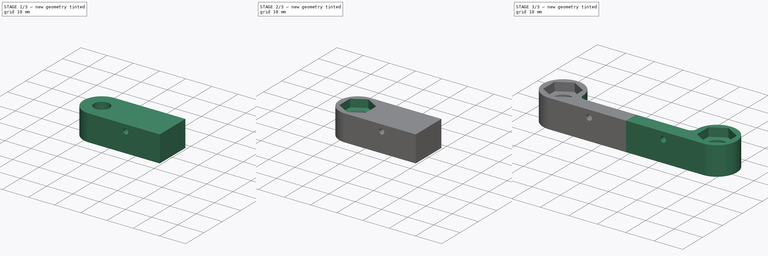
[diagram: build sequence overview — one tinted view per stage of 3, left to right]
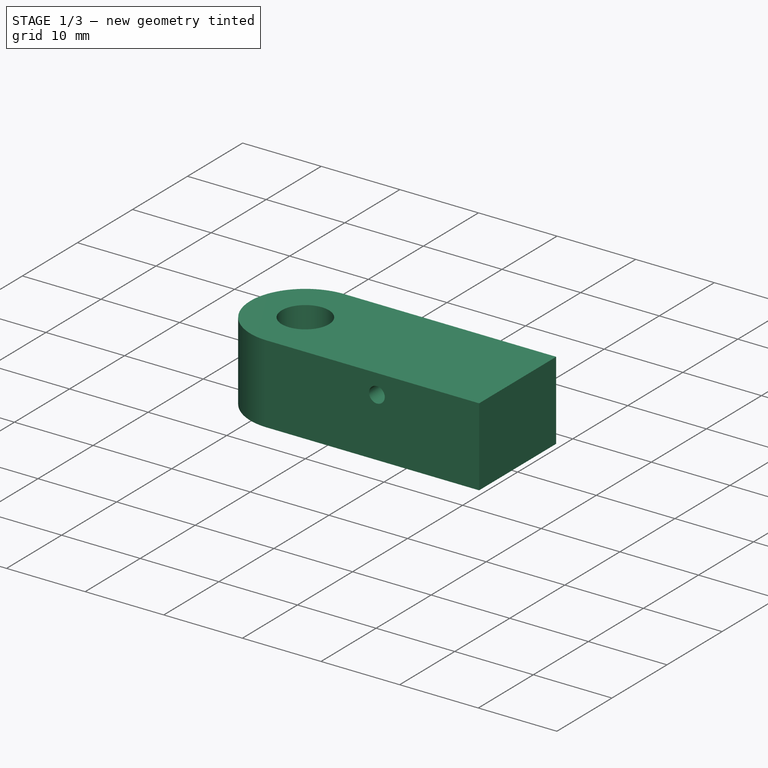
[diagram: stage 1 of 3 — iso view after this stage's code; geometry added in this stage tinted green]
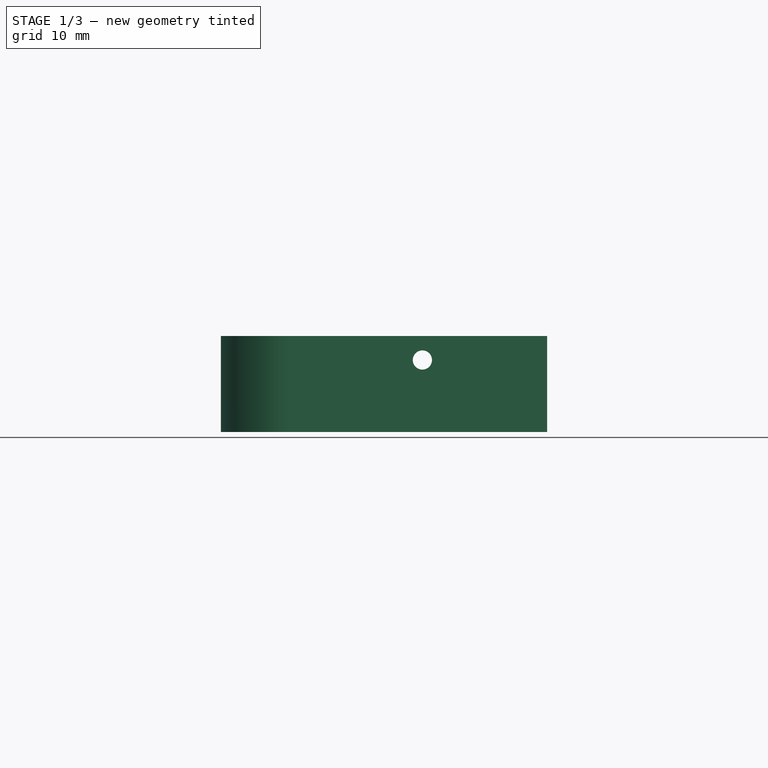
[diagram: stage 1 of 3 — front view after this stage's code; geometry added in this stage tinted green]
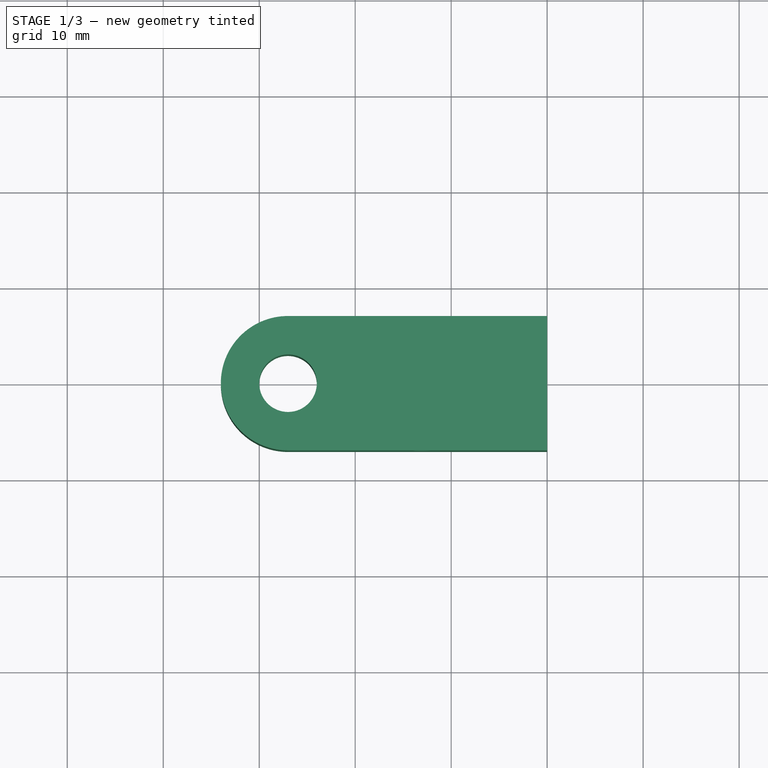
[diagram: stage 1 of 3 — top view after this stage's code; geometry added in this stage tinted green]
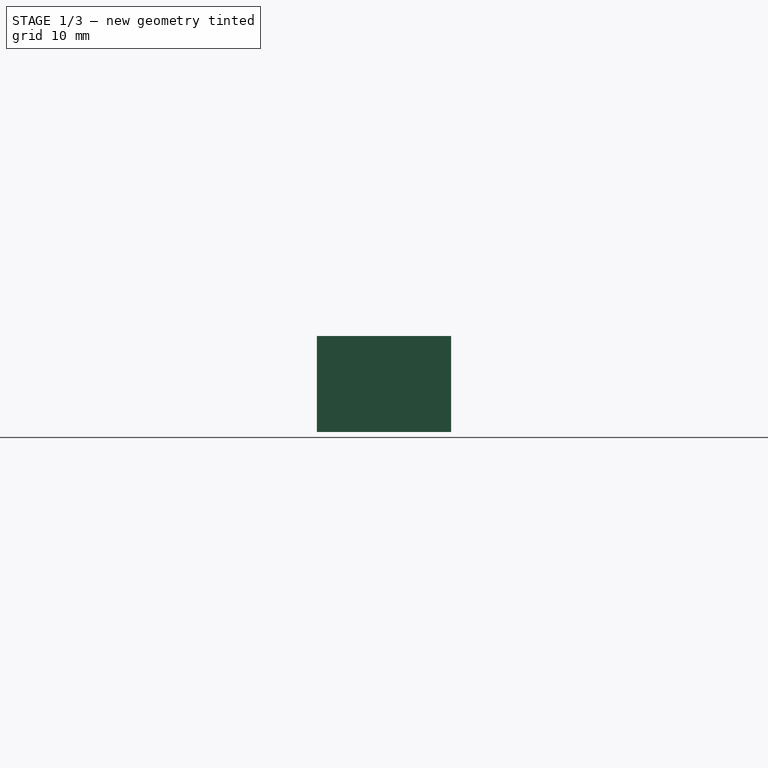
[diagram: stage 1 of 3 — right view after this stage's code; geometry added in this stage tinted green]
FCSTD DOCUMENT  (FreeCAD 0.19R24291 (Git))
Label: Подложка3
License: All rights reserved
LicenseURL: http://en.wikipedia.org/wiki/All_rights_reserved
objects: Sketcher::SketchObject×4, PartDesign::Pocket×3, PartDesign::Pad×1, PartDesign::Mirrored×1, PartDesign::Body×1
note: 14 computed .brp shape members not serialized (recipe doc carries the construction recipe); baked Part::Feature solids carry a one-line shape summary decoded from their .brp

FEATURE [Sketcher::SketchObject] Sketch
  FullyConstrained = true
  MapMode = 5
  Support = -> [XY_Plane]
  sketch-geometry (9):
    g0: ArcOfCircle CenterX=-27 CenterY=0 CenterZ=0 NormalX=0 NormalY=0 NormalZ=1 AngleXU=0 Radius=7 StartAngle=1.5708 EndAngle=4.71239
    g1: LineSegment StartX=-27 StartY=7 StartZ=0 EndX=0 EndY=7 EndZ=0
    g2: LineSegment StartX=-27 StartY=-7 StartZ=0 EndX=0 EndY=-7 EndZ=0
    g3: Circle CenterX=-27 CenterY=0 CenterZ=0 NormalX=0 NormalY=0 NormalZ=1 AngleXU=0 Radius=3
    g4: GeomPoint X=-34 Y=0 Z=0
    g5: LineSegment StartX=0 StartY=-7 StartZ=0 EndX=0 EndY=7 EndZ=0
    g6: GeomPoint X=-30 Y=0 Z=0
    g7: GeomPoint X=-27 Y=3 Z=0
    g8: GeomPoint X=-27 Y=-3 Z=0
  constraints (23):
    c: PointOnObject(g0,g-1)
    c: Coincident(g1,g0)
    c: Horizontal(g1)
    c: Coincident(g2,g0)
    c: Horizontal(g2)
    c: Tangent(g1,g0)
    c: Tangent(g0,g2)
    c: Diameter(g3) = 6
    c: Diameter(g0) = 14
    c: PointOnObject(g2,g-2)
    c: PointOnObject(g1,g-2)
    c: PointOnObject(g4,g0)
    c: PointOnObject(g4,g-1)
    c: Coincident(g5,g2)
    c: Coincident(g5,g1)
    c: PointOnObject(g6,g3)
    c: PointOnObject(g7,g3)
    c: PointOnObject(g8,g3)
    c: Vertical(g8,g3)
    c: Vertical(g3,g7)
    c: Horizontal(g3,g6)
    c: Distance(g0,g-1) = 27
    c: Coincident(g0,g3)
FEATURE [PartDesign::Pad] Pad
  Direction = (1,1,1)
  Length = 10
  Length2 = 100
  Profile = -> Sketch
  Type = 0
FEATURE [Sketcher::SketchObject] Sketch001
  FullyConstrained = false
  MapMode = 5
  Placement = pos=(0,-7,0) rot=(1,0,0;1.5708rad)
  sketch-geometry (5):
    g0: Circle CenterX=-13 CenterY=7.5 CenterZ=0 NormalX=0 NormalY=0 NormalZ=1 AngleXU=0 Radius=1
    g1: LineSegment StartX=-13 StartY=0 StartZ=0 EndX=-13 EndY=2.5 EndZ=0
    g2: LineSegment StartX=-13 StartY=2.5 StartZ=0 EndX=-13 EndY=5 EndZ=0
    g3: LineSegment StartX=-13 StartY=5 StartZ=0 EndX=-13 EndY=7.5 EndZ=0
    g4: LineSegment StartX=-13 StartY=7.5 StartZ=0 EndX=-13 EndY=10 EndZ=0
  constraints (13):
    c: Diameter(g0) = 2
    c: PointOnObject(g1,g-1)
    c: Coincident(g1,g2)
    c: Vertical(g2)
    c: Coincident(g2,g3)
    c: Coincident(g3,g0)
    c: Vertical(g3)
    c: Coincident(g3,g4)
    c: Vertical(g4)
    c: Vertical(g1)
    c: Equal(g1,g2)
    c: Equal(g2,g3)
    c: Equal(g3,g4)
FEATURE [PartDesign::Pocket] Pocket
  BaseFeature = -> Pad
  Length = 5
  Length2 = 100
  Profile = -> Sketch001
  Type = 1
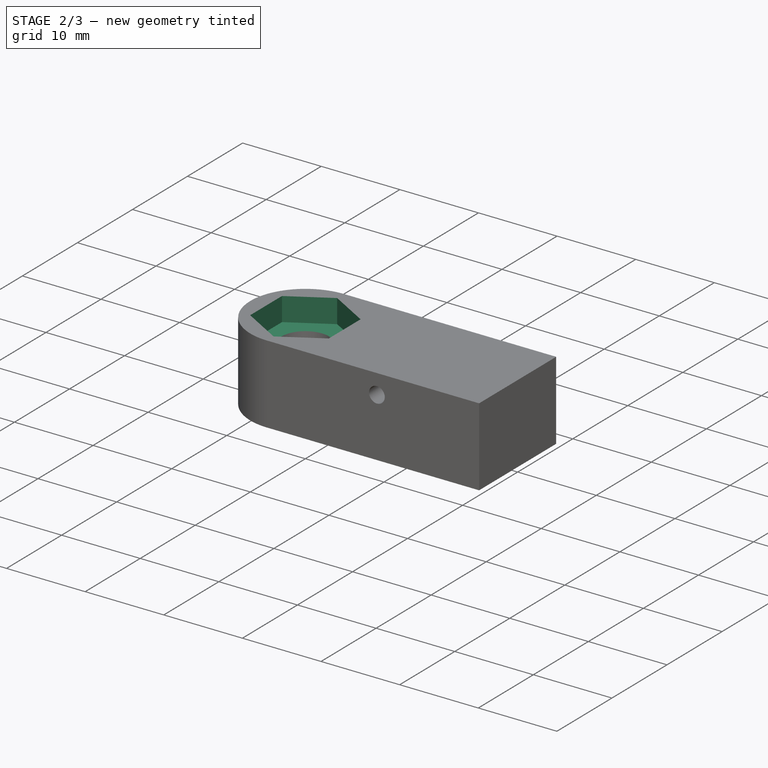
[diagram: stage 2 of 3 — iso view after this stage's code; geometry added in this stage tinted green]
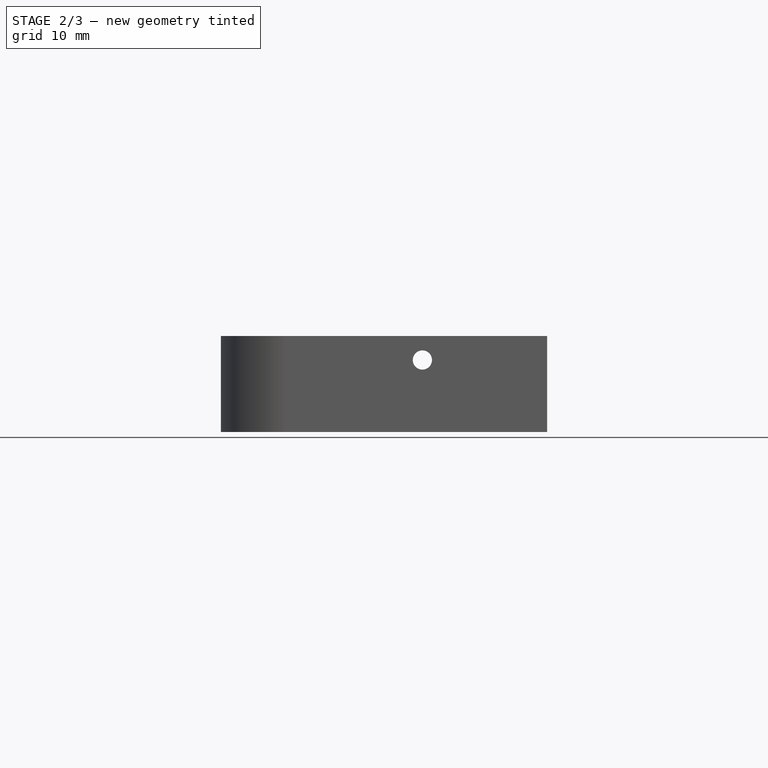
[diagram: stage 2 of 3 — front view after this stage's code; geometry added in this stage tinted green]
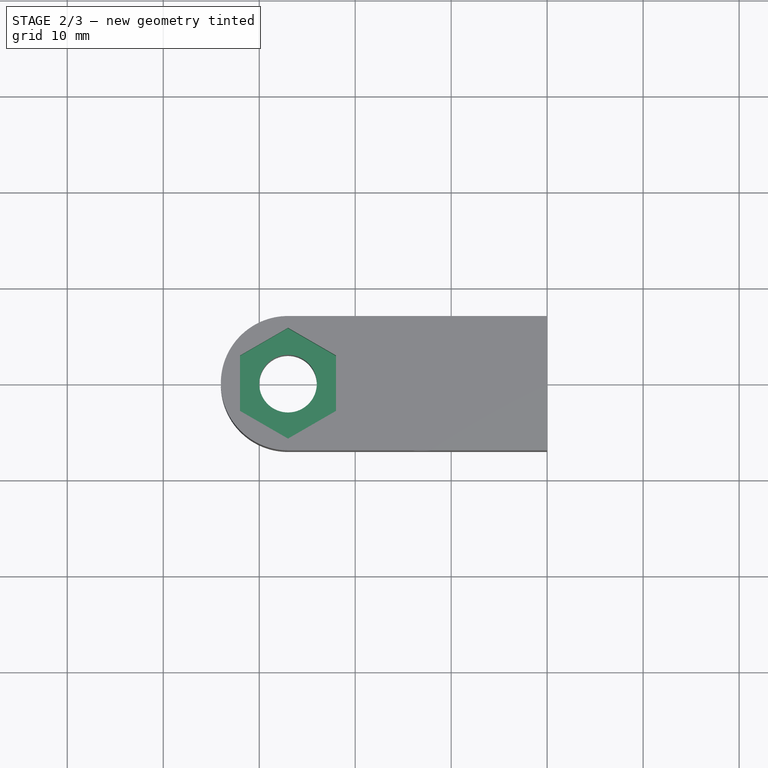
[diagram: stage 2 of 3 — top view after this stage's code; geometry added in this stage tinted green]
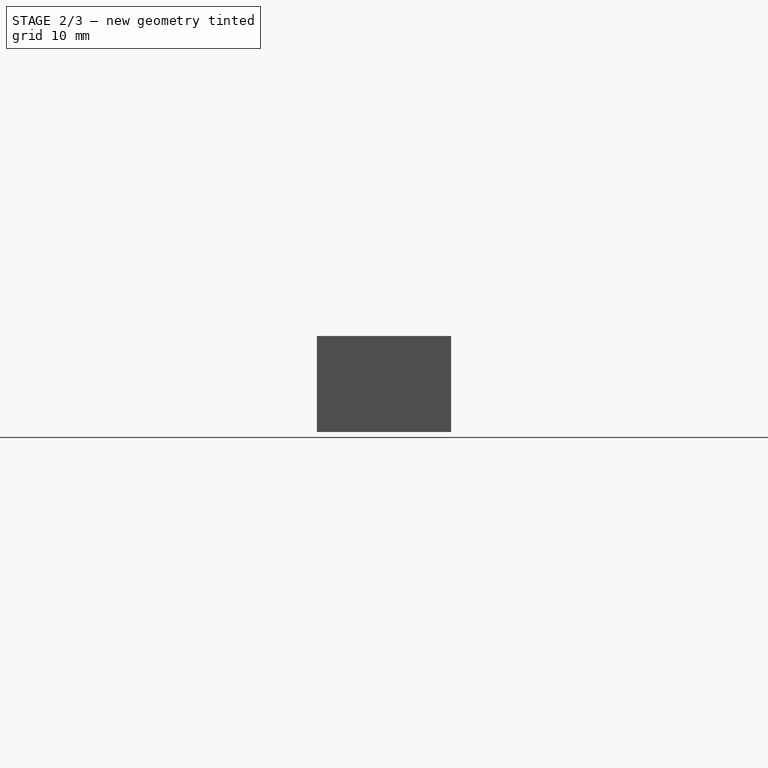
[diagram: stage 2 of 3 — right view after this stage's code; geometry added in this stage tinted green]
FEATURE [Sketcher::SketchObject] Sketch002
  ExternalGeometry = -> [Pocket]
  FullyConstrained = true
  MapMode = 5
  Placement = pos=(0,0,10) rot=(0,0,1;0rad)
  Support = -> [Pocket]
  sketch-geometry (7):
    g0: LineSegment StartX=-22 StartY=2.88675 StartZ=0 EndX=-27 EndY=5.7735 EndZ=0
    g1: LineSegment StartX=-27 StartY=5.7735 StartZ=0 EndX=-32 EndY=2.88675 EndZ=0
    g2: LineSegment StartX=-32 StartY=2.88675 StartZ=0 EndX=-32 EndY=-2.88675 EndZ=0
    g3: LineSegment StartX=-32 StartY=-2.88675 StartZ=0 EndX=-27 EndY=-5.7735 EndZ=0
    g4: LineSegment StartX=-27 StartY=-5.7735 StartZ=0 EndX=-22 EndY=-2.88675 EndZ=0
    g5: LineSegment StartX=-22 StartY=-2.88675 StartZ=0 EndX=-22 EndY=2.88675 EndZ=0
    g6: Circle CenterX=-27 CenterY=0 CenterZ=0 NormalX=0 NormalY=0 NormalZ=1 AngleXU=0 Radius=5.7735
  constraints (16):
    c: Coincident(g0,g1)
    c: Coincident(g1,g2)
    c: Coincident(g2,g3)
    c: Coincident(g3,g4)
    c: Coincident(g4,g5)
    c: Coincident(g5,g0)
    c: Equal(g0, g1-g5) x5
    c: PointOnObject(g0,g6)
    c: PointOnObject(g1,g6)
    c: PointOnObject(g2,g6)
    c: PointOnObject(g3,g6)
    c: PointOnObject(g4,g6)
    c: PointOnObject(g5,g6)
    c: Coincident(g6,g-3)
    c: Vertical(g5)
    c: Distance(g4,g2) = 10
FEATURE [PartDesign::Pocket] Pocket001
  BaseFeature = -> Pocket
  Length = 3
  Length2 = 100
  Profile = -> Sketch002
  Type = 0
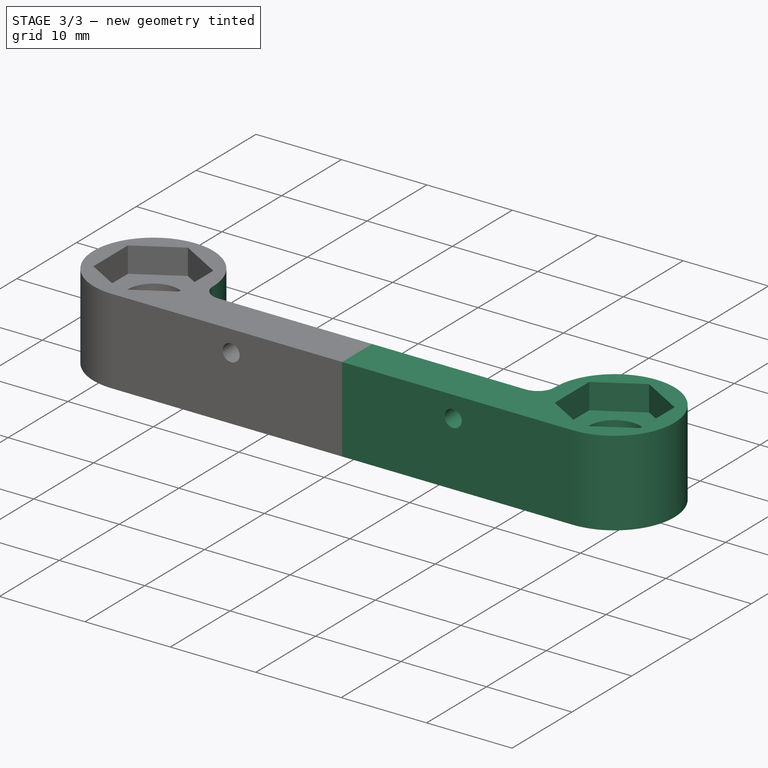
[diagram: stage 3 of 3 — iso view after this stage's code; geometry added in this stage tinted green]
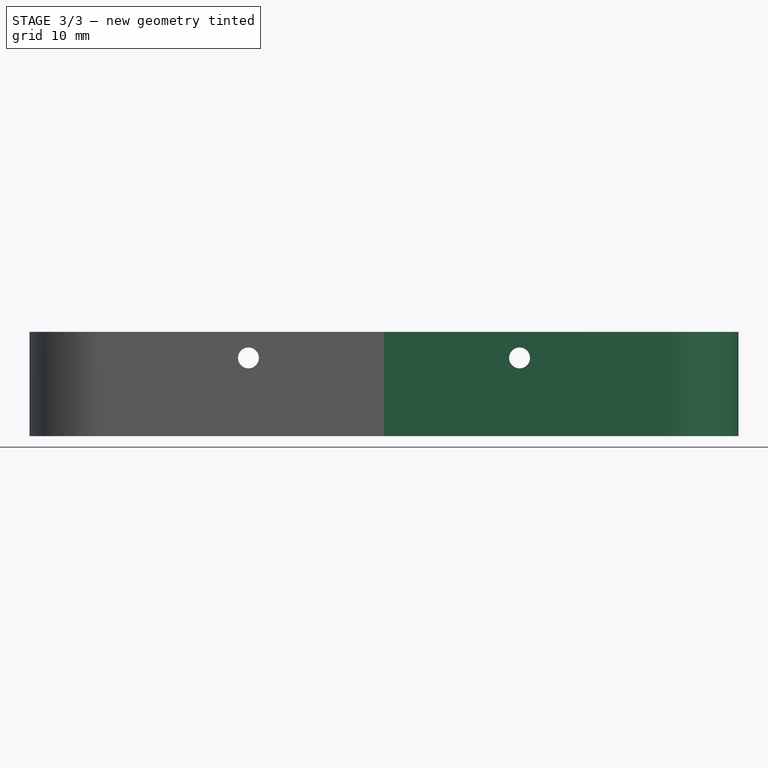
[diagram: stage 3 of 3 — front view after this stage's code; geometry added in this stage tinted green]
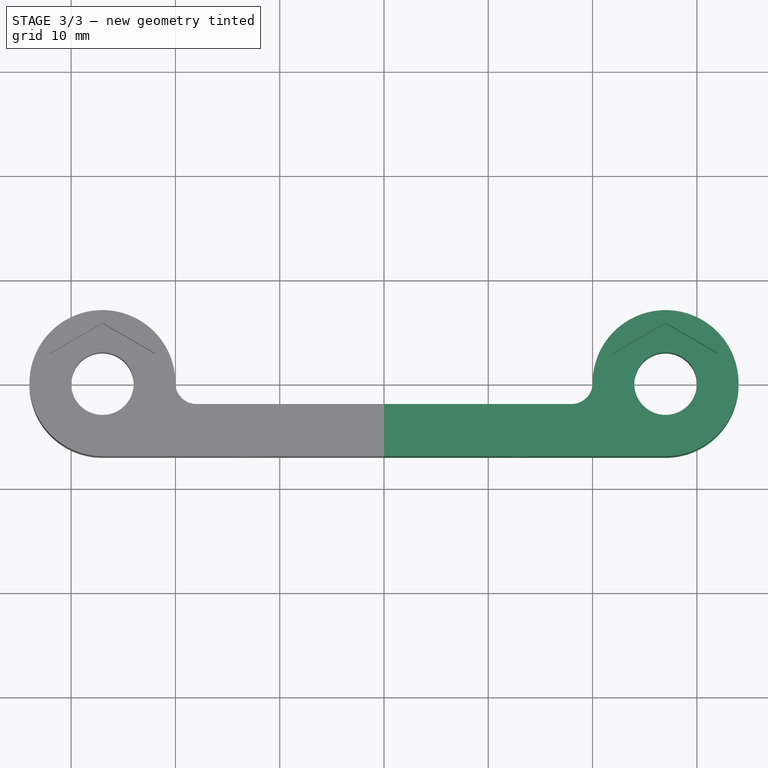
[diagram: stage 3 of 3 — top view after this stage's code; geometry added in this stage tinted green]
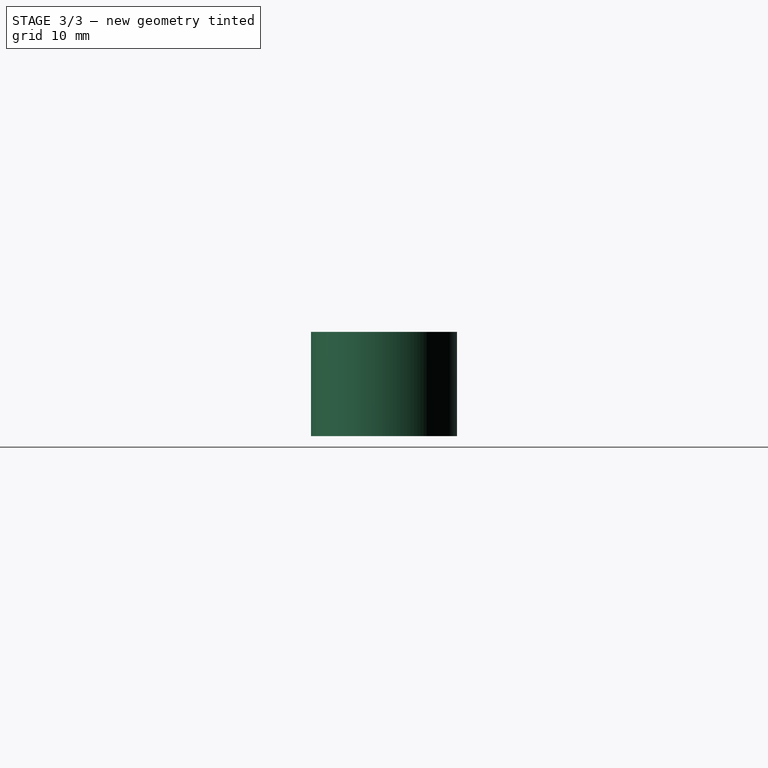
[diagram: stage 3 of 3 — right view after this stage's code; geometry added in this stage tinted green]
FEATURE [Sketcher::SketchObject] Sketch003
  ExternalGeometry = -> [Pocket001]
  FullyConstrained = true
  MapMode = 5
  Placement = pos=(0,0,10) rot=(0,0,1;0rad)
  Support = -> [Pocket001]
  sketch-geometry (5):
    g0: LineSegment StartX=0 StartY=-2 StartZ=0 EndX=-18 EndY=-2 EndZ=0
    g1: ArcOfCircle CenterX=-27 CenterY=0 CenterZ=0 NormalX=0 NormalY=0 NormalZ=1 AngleXU=0 Radius=7 StartAngle=6.28318 EndAngle=7.85398
    g2: ArcOfCircle CenterX=-18 CenterY=0 CenterZ=0 NormalX=0 NormalY=0 NormalZ=1 AngleXU=0 Radius=2 StartAngle=3.1416 EndAngle=4.71239
    g3: LineSegment StartX=-27 StartY=7 StartZ=0 EndX=0 EndY=7 EndZ=0
    g4: LineSegment StartX=0 StartY=-2 StartZ=0 EndX=0 EndY=7 EndZ=0
  constraints (15):
    c: PointOnObject(g0,g-2)
    c: Horizontal(g0)
    c: Distance(g-5,g0) = 5
    c: Coincident(g1,g-4)
    c: Coincident(g1,g-4)
    c: Coincident(g2,g0)
    c: Coincident(g2,g1)
    c: Tangent(g0,g2)
    c: Tangent(g2,g1)
    c: PointOnObject(g2,g-1)
    c: Coincident(g3,g1)
    c: PointOnObject(g3,g-2)
    c: Horizontal(g3)
    c: Coincident(g4,g0)
    c: Coincident(g4,g3)
FEATURE [PartDesign::Pocket] Pocket002
  BaseFeature = -> Pocket001
  Length = 5
  Length2 = 100
  Profile = -> Sketch003
  Type = 1
FEATURE [PartDesign::Mirrored] Mirrored
  BaseFeature = -> Pocket002
  MirrorPlane = -> Sketch003 [V_Axis]
  Originals = -> [Pad,Pocket,Pocket001,Pocket002]
FEATURE [PartDesign::Body] Body
  Group = -> [Sketch,Pad,Sketch001,Pocket,Sketch002,Pocket001,Sketch003,Pocket002,Mirrored]
  Origin = -> Origin
  Tip = -> Mirrored
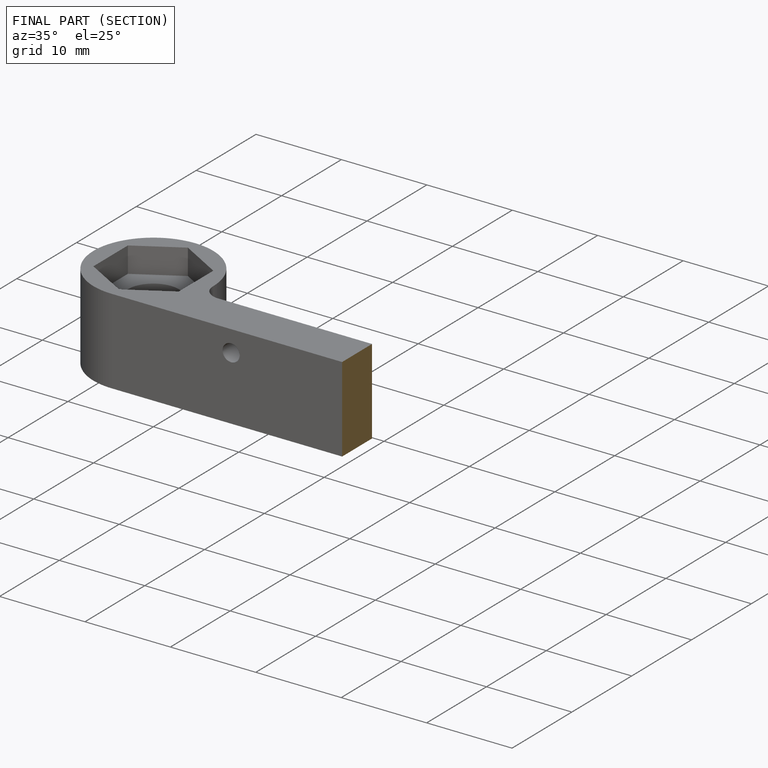
[diagram: finished part — half-section view (interior)]
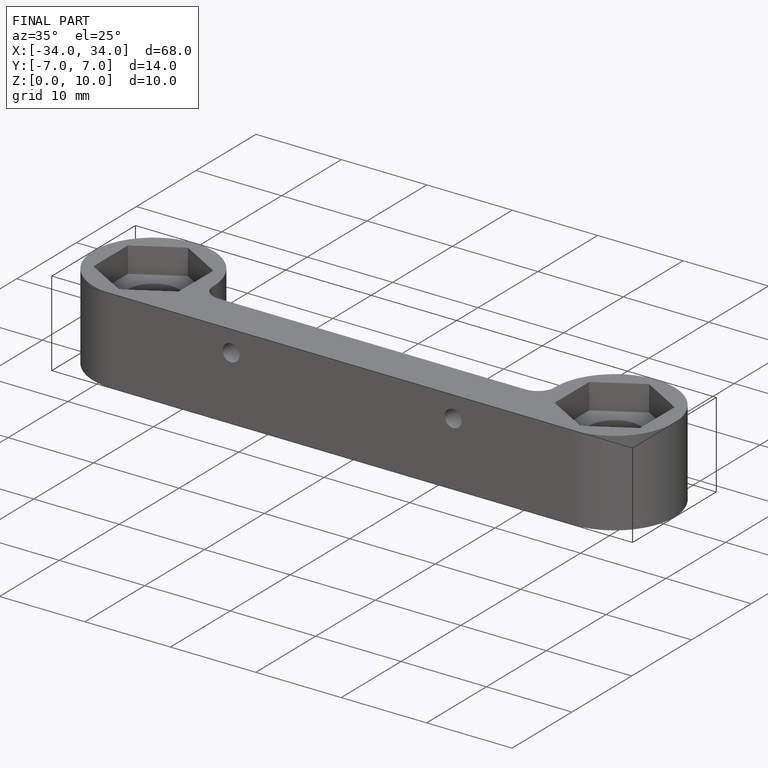
[diagram: finished part — iso view with bounding-box wireframe]
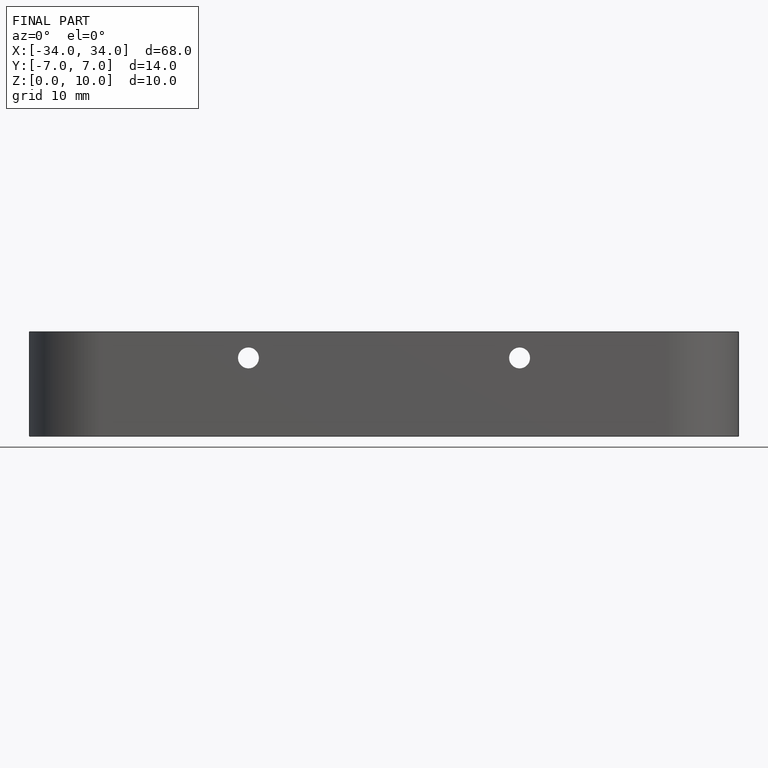
[diagram: finished part — front view with bounding-box wireframe]
